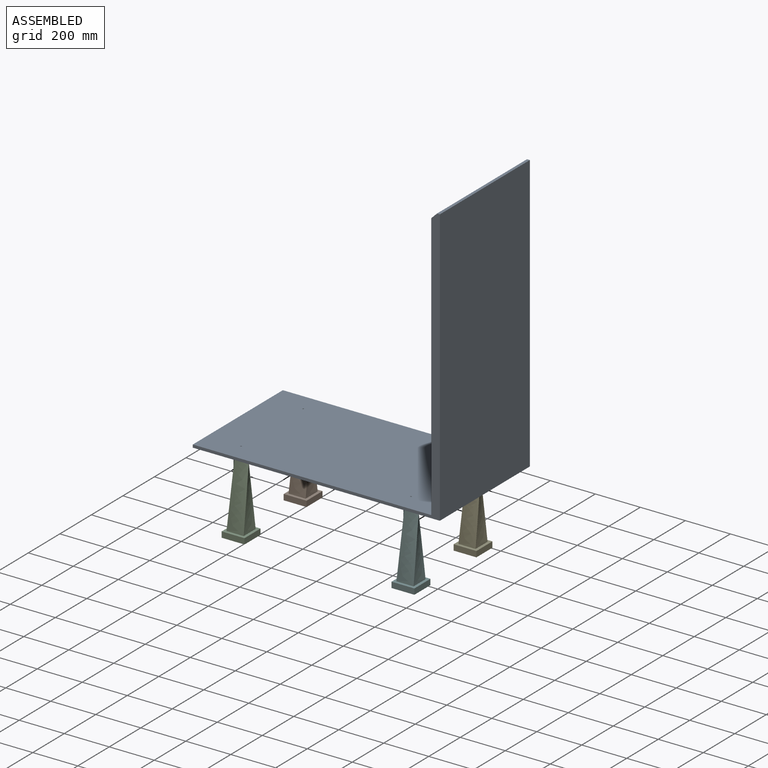
[diagram: assembled view]
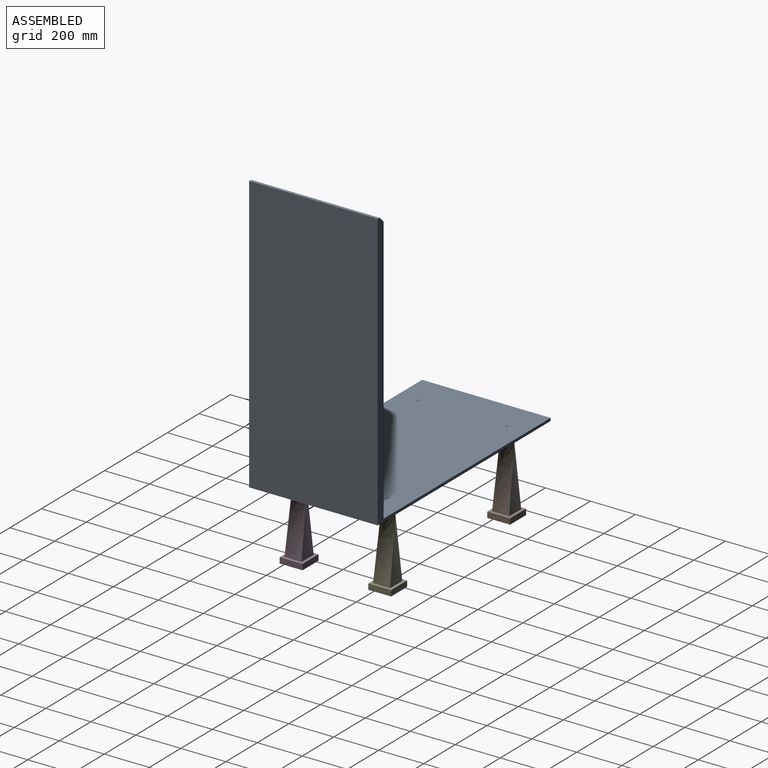
[diagram: assembled view, second angle]
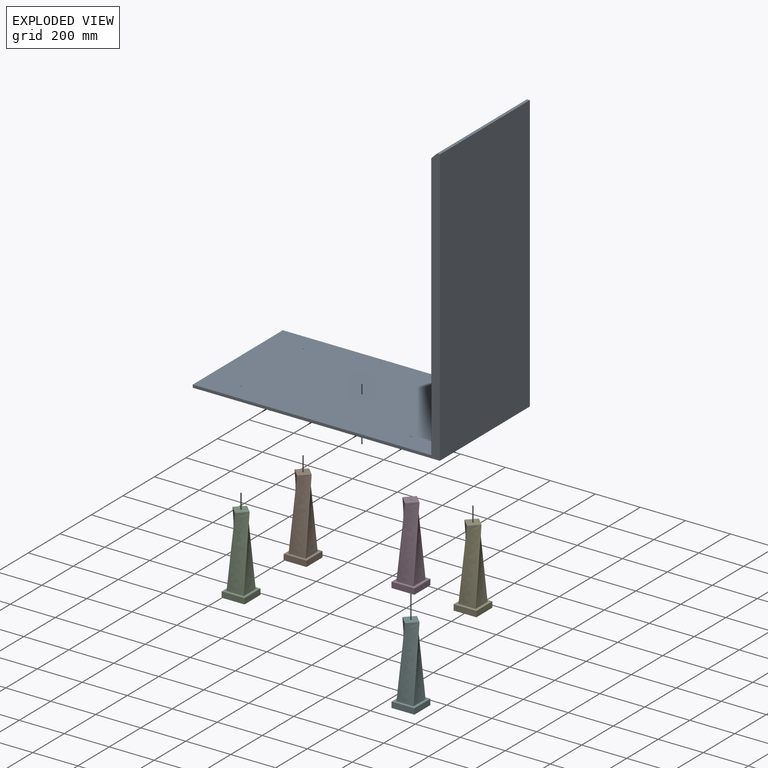
[diagram: exploded view]
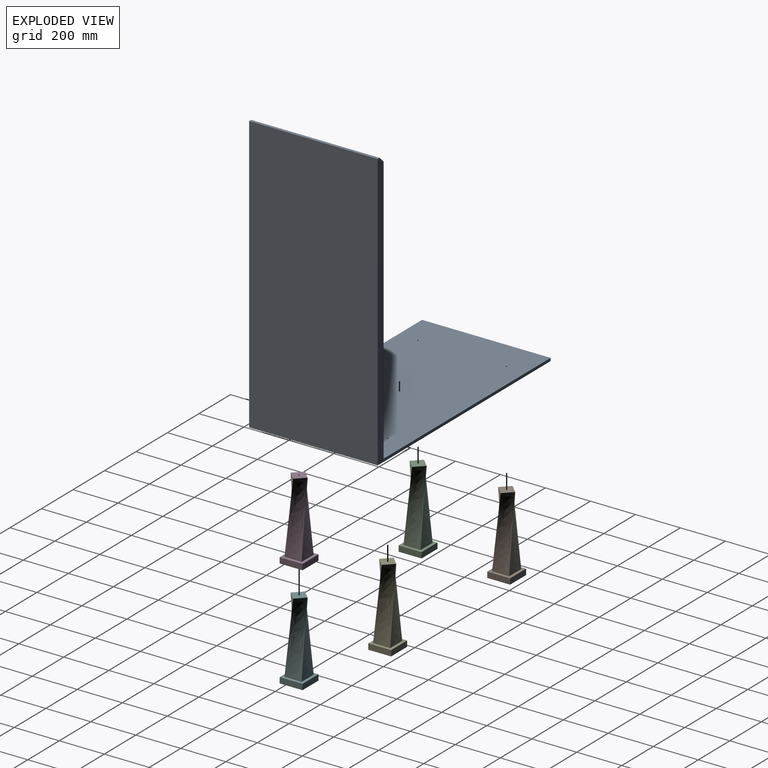
[diagram: exploded view, second angle]
ASSEMBLY  parts=6 mates=4
PART A: 13 faces, bbox 1098.1x571.5x1230.9 mm
  f0: plane 571.5x12.7mm, normal (0,0,1), area 7258.1mm2, adj f1,f4,f5,f8
  f1: plane 1230.86x1098.09mm, normal (0,1,0), area 59981.2mm2, adj f0,f2,f3,f5,f6,f7,f8
  f2: plane 1059.99x571.5mm, normal (0,0,1), area 605659.2mm2, adj f1,f3,f4,f7,f9,f10,f11,f12
  f3: plane 571.5x12.65mm, normal (-1,0,0), area 7229mm2, adj f1,f2,f4,f6
  f4: plane 1230.86x1098.09mm, normal (0,-1,0), area 59981.2mm2, adj f0,f2,f3,f5,f6,f7,f8
  f5: plane 1230.86x571.5mm, normal (1,0,0), area 703435.7mm2, adj f0,f1,f4,f6
  f6: plane 1098.09x571.5mm, normal (0,0,-1), area 627433.4mm2, adj f1,f3,f4,f5,f9,f10,f11,f12
  f7: plane 1192.81x571.5mm, normal (-1,0,0), area 681690.6mm2, adj f1,f2,f4,f8
  f8: plane 571.5x25.4mm, normal (-0.71,0,0.71), area 20528.9mm2, adj f0,f1,f4,f7
  f9: cylinder r=3.17mm len=12.65mm, axis (0,0,-1), area 252.3mm2, adj f2,f6
  f10: cylinder r=3.17mm len=12.65mm, axis (0,0,-1), area 252.3mm2, adj f2,f6
  f11: cylinder r=3.17mm len=12.65mm, axis (0,0,-1), area 252.3mm2, adj f2,f6
  f12: cylinder r=3.17mm len=12.65mm, axis (0,0,-1), area 252.3mm2, adj f2,f6
PART B: 15 faces, bbox 101.6x101.6x349.3 mm
  f0: plane 101.6x25.4mm, normal (-1,0,0), area 2580.6mm2, adj f1,f3,f4,f5
  f1: plane 101.6x25.4mm, normal (0,-1,0), area 2580.6mm2, adj f0,f2,f4,f5
  f2: plane 101.6x25.4mm, normal (1,0,0), area 2580.6mm2, adj f1,f3,f4,f5
  f3: plane 101.6x25.4mm, normal (0,1,0), area 2580.6mm2, adj f0,f2,f4,f5
  f4: plane 101.6x101.6mm, normal (0,0,1), area 4516.1mm2, adj f0,f1,f2,f3,f7,f8,f9,f10
  f5: plane 101.6x101.6mm, normal (0,0,-1), area 10290.9mm2, adj f0,f1,f2,f3,f11
  f6: plane 76.2x76.2mm, normal (0,0,1), area 2871.6mm2, adj f7,f8,f9,f10,f13
  f7: bspline ~323.85x76.2mm, area 20062.2mm2, adj f4,f6,f8,f10
  f8: bspline ~323.85x76.2mm, area 20062.2mm2, adj f4,f6,f7,f9
  f9: bspline ~323.85x76.2mm, area 20062.2mm2, adj f4,f6,f8,f10
  f10: bspline ~323.85x76.2mm, area 20062.2mm2, adj f4,f6,f7,f9
  f11: cylinder r=3.17mm len=25.4mm, axis (0,0,-1), area 506.7mm2, adj f5,f12
  f12: cone r=0mm half-angle=59deg, axis (0,0,-1), area 36.9mm2, adj f11
  f13: cylinder r=3.17mm len=25.4mm, axis (0,0,1), area 506.7mm2, adj f6,f14
  f14: cone r=0mm half-angle=59deg, axis (0,0,1), area 36.9mm2, adj f13
PART C: same geometry as B
PART D: same geometry as B
PART E: same geometry as B
PART F: same geometry as B
PLACE A t=(-1370.01,-226.73,368.35)mm
PLACE B t=(-1268.41,306.67,19.1)mm
PLACE C t=(-1268.41,-87.03,19.1)mm
PLACE D t=(-513.22,-87.03,19.1)mm
PLACE E t=(-513.22,306.67,19.1)mm
PLACE F t=(-513.22,-87.03,19.1)mm
MATE fastened B.f11 <-> A.f9  axis (0,0,1) through (-1217.61,255.87,368.35)mm
MATE fastened A.f11 <-> F.f11  axis (0,0,-1) through (-462.42,-137.83,368.35)mm
MATE fastened C.f11 <-> A.f12  axis (0,0,1) through (-1217.61,-137.83,368.35)mm
MATE fastened E.f11 <-> A.f10  axis (0,0,1) through (-462.42,255.87,368.35)mm
